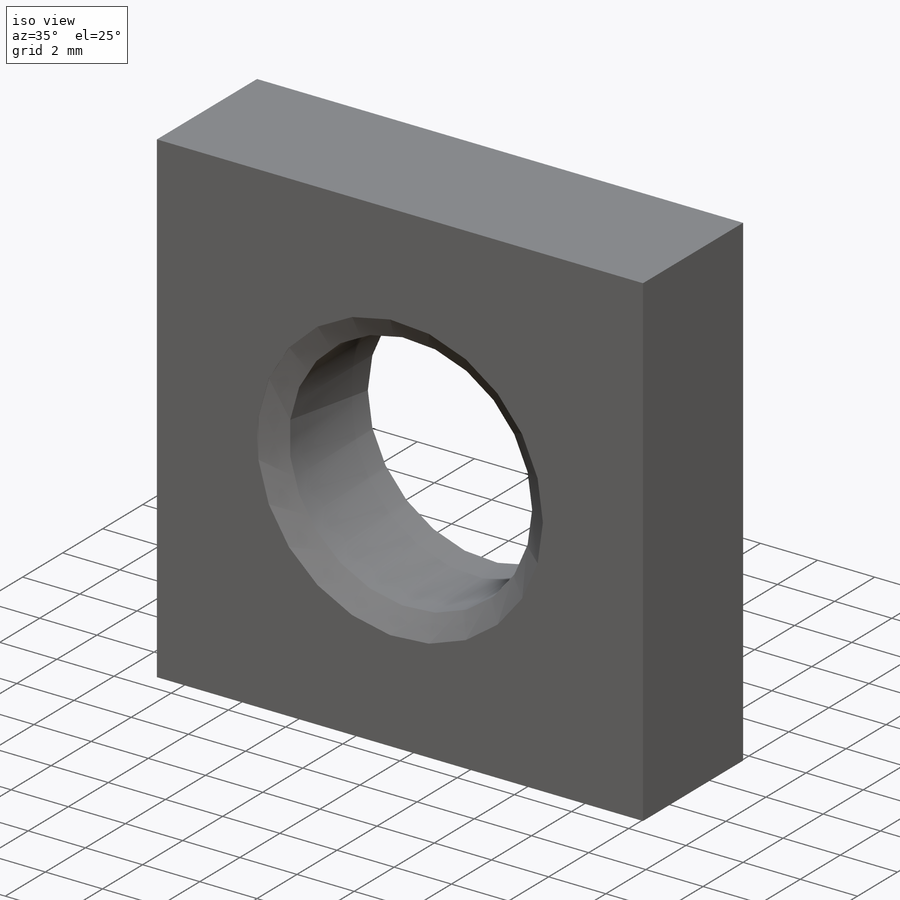
[diagram: iso view]
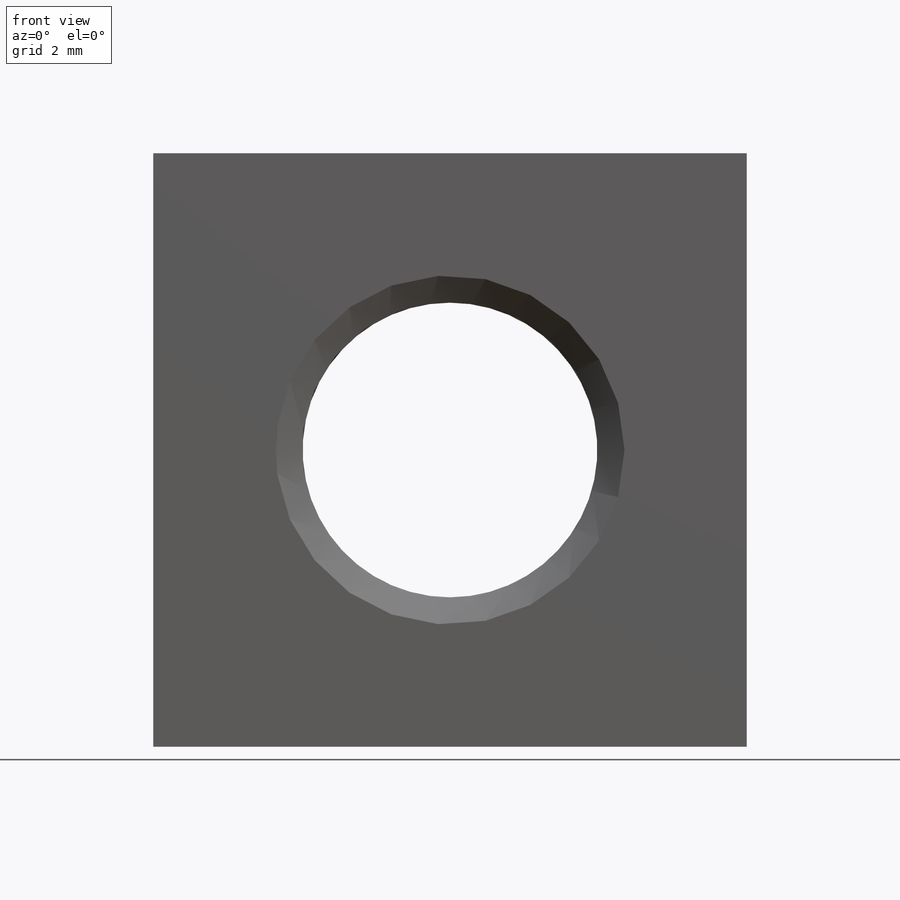
[diagram: front view]
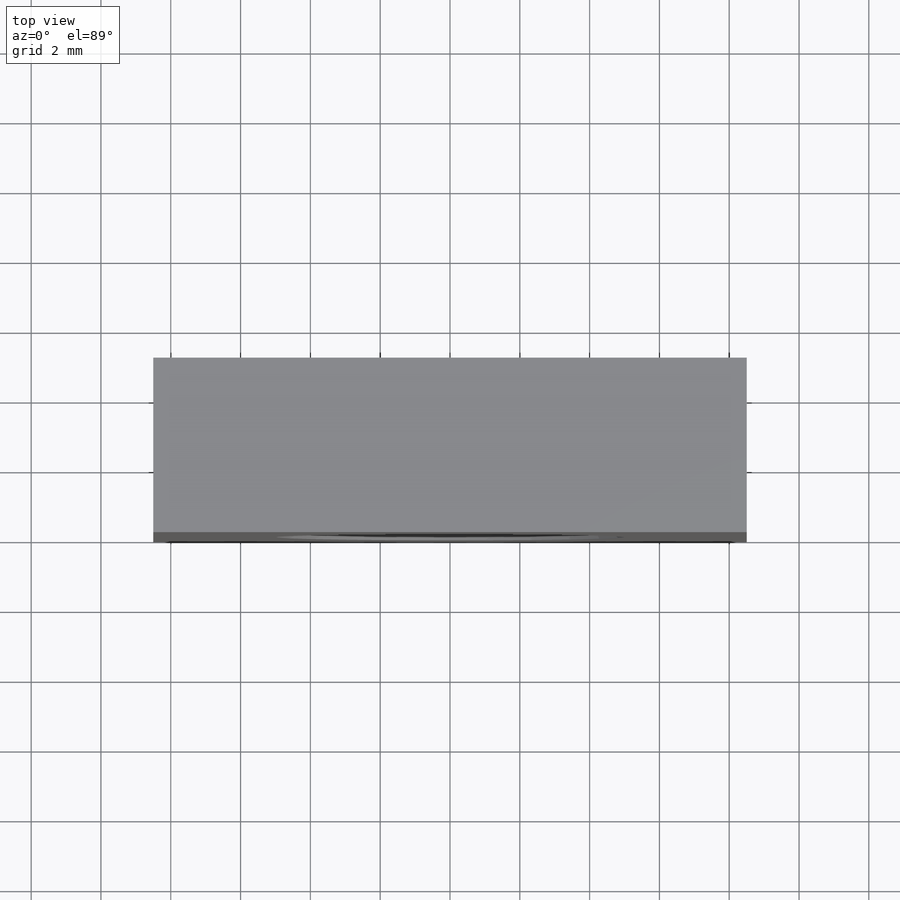
[diagram: top view]
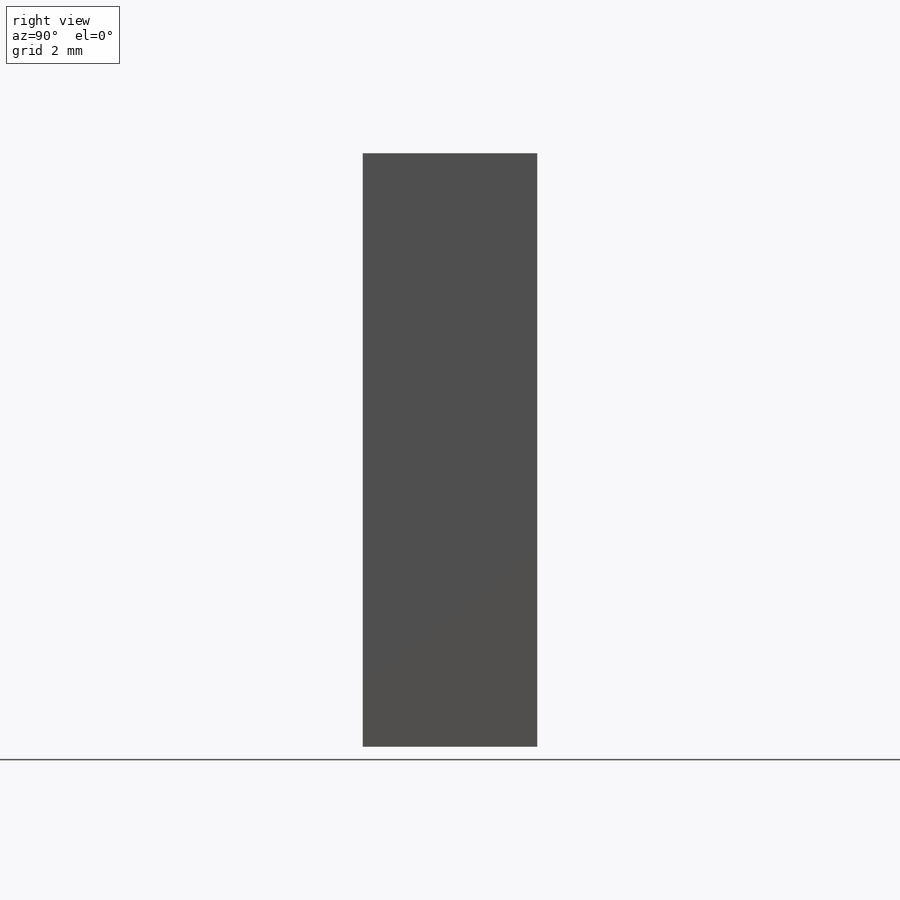
[diagram: right view]
SOLIDWORKS PART (.sldprt)
format: sldprt  version: not decoded by parser v0  size: 902,656 bytes
history: native  units: mm
features: plane x3, sketch x3, cut_revolve x2, material x1, extrude x1, thread x1, pattern_linear x1 (+9 scaffold rows collapsed)
feature tree (21):
  scaffold x9  (default folders/planes/origin — collapsed)
  material  "Материал <не указан>"
  plane  "Plane1"
  plane  "Plane2"
  plane  "Plane3"
  sketch  "BaseNutSke"  dims[Thread_min=2.5mm Width_flats=5.5mm D1=5.5mm D2=2.75mm D3=2.75mm]
  extrude  "BaseNut"  [1 undecoded]
  thread  "ThreadCosmetic"  [2 undecoded]
  cut_revolve  "EndChamfer"  [1 undecoded]
  sketch  "EndChamferSketch"  dims[c1.D1=~8.980256mm c2.D1=315.0deg c3.D1=~8.980256mm c4.D1=45.0deg c4.D2=~8.94581mm c5.D2=~1.952549deg c5.D3=6.35mm c6.D2=25.7048mm c6.D1=~6.352235mm c7.D1=35.0deg c7.D2=12.7mm c7.D3=12.7mm c8.D2=22.5552mm c8.D3=25.4mm c8.D4=12.7mm c9.D3=12.7mm c9.D2=0.01mm c9.Offset1=25.4254mm c9.ThreadMajor=12.7mm c9.ChamferDepth=0.275mm c9.Offset2=1.803mm c10.ThreadMajor=12.7mm c10.Offset1=22.5552mm c11.ThreadMajor=12.7mm c11.Offset1=22.5552mm c12.ThreadMajor=1.5mm c12.Offset1=1.801mm c12.D3=~13.350447mm c12.D1=360.0deg c12.Thread_nominal=3.0mm c12.Thickness=1.8mm]
  sketch  "ThdSchSke"  dims[c1.D1=~4.490128mm c2.D1=90.0deg c3.D1=~4.490128mm c3.VeeAngle=70.0deg c4.D1=19.5834mm c4.SideAngle=55.0deg c5.D1=~4.490128mm c5.SideAngle=55.0deg c5.ThreadDepth=2.54mm c6.ThreadDepth=3.175mm c6.Thread_Major=6.35mm c6.D1=~9.573347mm c6.D2=~9.428305mm c6.OverCut=~10.81024mm c6.Tap_Drill=~21.62048mm c6.Advance=1.27mm c6.Thread_major=25.4mm c7.Advance=3.175mm c7.D1=6.35mm c7.D2=0.0254mm c8.D1=3.175mm c8.D2=0.127mm c9.D1=0.0254mm c9.D2=0.254mm c10.D1=0.0254mm c10.Thread_major=3.0mm c10.Tap_drill=2.5mm c10.OverCut=1.25mm c10.Advance=0.5mm]
  cut_revolve  "ThreadSchematic"  Angle=360deg
  pattern_linear  "ThdSchPat"  Count1=5 Count2=1 Spacing1=0.4495mm Spacing2=50mm Num_threads=5 Advance=0.4495mm
decode coverage: 5 of 8 modeling features carry decoded parameters
note: ~ marks probable driven/reference dimensions
note: 4 parameter values undecoded
summary: no parameter record found for 3 features
note: suppression state not decoded; provenance and decode notes live in map.json
